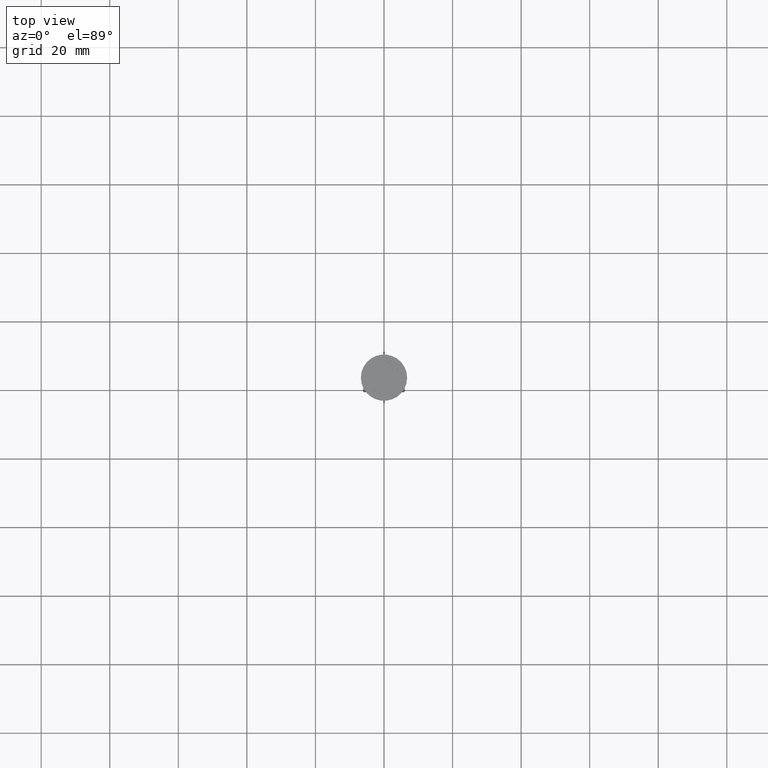
[diagram: clean part render]
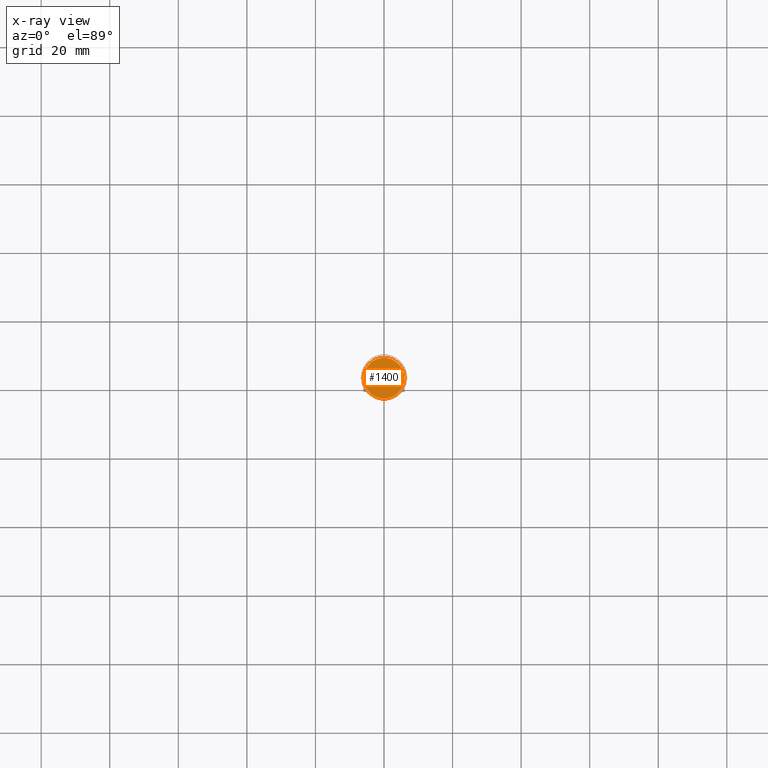
[diagram: x-ray — body ghosted, one internal face saturated and labeled with its STEP entity id]
A machine part, top view, then the same camera in x-ray: the body is ghosted and one INTERNAL B-rep face — a face not visible from any outside direction — is saturated and labeled: STEP entity #1400.
In plain terms, the highlighted planar face has unit normal (0, 0, -1).
Its self-contained STEP definition (entity closure, byte-faithful):
#28 = FACE_OUTER_BOUND ( 'NONE', #1405, .T. ) ;
#70 = DIRECTION ( 'NONE',  ( -1.000000000000000000, 0.000000000000000000, -0.000000000000000000 ) ) ;
#309 = CARTESIAN_POINT ( 'NONE',  ( 0.000000000000000000, 0.000000000000000000, -10.50000000000000178 ) ) ;
#465 = DIRECTION ( 'NONE',  ( -0.000000000000000000, -0.000000000000000000, 1.000000000000000000 ) ) ;
#500 = CARTESIAN_POINT ( 'NONE',  ( 0.000000000000000000, 0.000000000000000000, -10.50000000000000178 ) ) ;
#532 = VERTEX_POINT ( 'NONE', #1164 ) ;
#672 = CIRCLE ( 'NONE', #2320, 5.950000000000002842 ) ;
#805 = ORIENTED_EDGE ( 'NONE', *, *, #1128, .T. ) ;
#967 = PLANE ( 'NONE',  #1830 ) ;
#1025 = DIRECTION ( 'NONE',  ( -1.000000000000000000, 0.000000000000000000, 0.000000000000000000 ) ) ;
#1094 = ORIENTED_EDGE ( 'NONE', *, *, #1201, .T. ) ;
#1128 = EDGE_CURVE ( 'NONE', #2194, #532, #672, .T. ) ;
#1164 = CARTESIAN_POINT ( 'NONE',  ( -5.950000000000002842, 0.000000000000000000, -10.50000000000000178 ) ) ;
#1168 = DIRECTION ( 'NONE',  ( -0.000000000000000000, -0.000000000000000000, 1.000000000000000000 ) ) ;
#1201 = EDGE_CURVE ( 'NONE', #532, #2194, #1604, .T. ) ;
#1400 = ADVANCED_FACE ( 'NONE', ( #28 ), #967, .F. ) ;
#1405 = EDGE_LOOP ( 'NONE', ( #1094, #805 ) ) ;
#1483 = CARTESIAN_POINT ( 'NONE',  ( 0.000000000000000000, 0.000000000000000000, -10.50000000000000178 ) ) ;
#1604 = CIRCLE ( 'NONE', #1977, 5.950000000000002842 ) ;
#1621 = CARTESIAN_POINT ( 'NONE',  ( 5.950000000000002842, 7.470345474798858237E-16, -10.50000000000000178 ) ) ;
#1830 = AXIS2_PLACEMENT_3D ( 'NONE', #1483, #2198, #70 ) ;
#1977 = AXIS2_PLACEMENT_3D ( 'NONE', #309, #465, #1025 ) ;
#2113 = DIRECTION ( 'NONE',  ( -1.000000000000000000, 0.000000000000000000, 0.000000000000000000 ) ) ;
#2194 = VERTEX_POINT ( 'NONE', #1621 ) ;
#2198 = DIRECTION ( 'NONE',  ( 0.000000000000000000, 0.000000000000000000, -1.000000000000000000 ) ) ;
#2320 = AXIS2_PLACEMENT_3D ( 'NONE', #500, #1168, #2113 ) ;